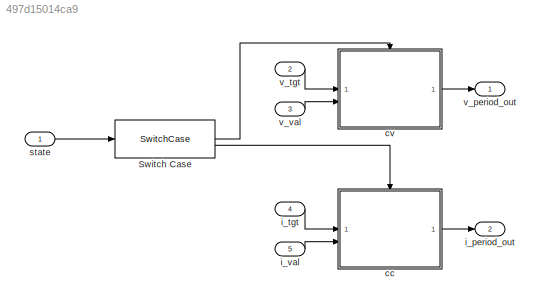
MODEL slx_497d15014ca9
KIND model
CONFIG AbsTol = auto
CONFIG EnableMultiTasking = off
CONFIG FixedStep = 0.001
CONFIG MaxStep = auto
CONFIG MinStep = auto
CONFIG RelTol = 1e-3
CONFIG SampleTimeConstraint = Unconstrained
CONFIG SolverName = FixedStepDiscrete
CONFIG StartTime = 0.0
CONFIG StopTime = inf
BLOCK [SwitchCase] Switch Case
  CaseConditions = {1,2}
  ShowDefaultCase = off
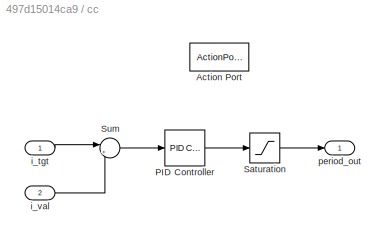
BLOCK [SubSystem] cc
  TreatAsAtomicUnit = on
BLOCK [ActionPort] cc/Action Port
  ActionPortLabel = case [ 2 ]:
BLOCK [Reference] cc/PID Controller  REF=slpidlib/PID Controller
  LibrarySourceBlock = simulink/Continuous/PID Controller
  SourceBlock = slpidlib/PID Controller
  SourceType = PID 1dof
BLOCK [Saturate] cc/Saturation
  LowerLimit = period_max*0.01
  UpperLimit = period_max*(12000/(12000+v_in)+0.1)
BLOCK [Sum] cc/Sum
  Inputs = |+-
BLOCK [Inport] cc/i_tgt
BLOCK [Inport] cc/i_val
  Port = 2
BLOCK [Outport] cc/period_out
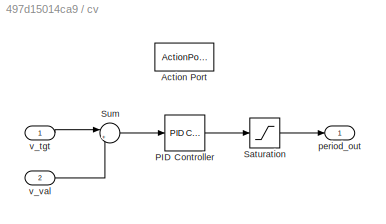
BLOCK [SubSystem] cv
  TreatAsAtomicUnit = on
BLOCK [ActionPort] cv/Action Port
  ActionPortLabel = case [ 1 ]:
BLOCK [Reference] cv/PID Controller  REF=slpidlib/PID Controller
  LibrarySourceBlock = simulink/Continuous/PID Controller
  SourceBlock = slpidlib/PID Controller
  SourceType = PID 1dof
BLOCK [Saturate] cv/Saturation
  LowerLimit = period_max*0.01
  UpperLimit = period_max*(12000/(12000+v_in)+0.1)
BLOCK [Sum] cv/Sum
  AccumDataTypeStr = single
  Inputs = |+-
  OutDataTypeStr = single
BLOCK [Outport] cv/period_out
  OutDataTypeStr = single
BLOCK [Inport] cv/v_tgt
BLOCK [Inport] cv/v_val
  Port = 2
BLOCK [Outport] i_period_out
  Port = 2
BLOCK [Inport] i_tgt
  Port = 4
BLOCK [Inport] i_val
  Port = 5
BLOCK [Inport] state
BLOCK [Outport] v_period_out
BLOCK [Inport] v_tgt
  Port = 2
BLOCK [Inport] v_val
  Port = 3
LINE Switch Case:1 -> cv:ifaction
LINE Switch Case:2 -> cc:ifaction
LINE cc/PID Controller:1 -> cc/Saturation:1
LINE cc/Saturation:1 -> cc/period_out:1
LINE cc/Sum:1 -> cc/PID Controller:1
LINE cc/i_tgt:1 -> cc/Sum:1
LINE cc/i_val:1 -> cc/Sum:2
LINE cc:1 -> i_period_out:1
LINE cv/PID Controller:1 -> cv/Saturation:1
LINE cv/Saturation:1 -> cv/period_out:1
LINE cv/Sum:1 -> cv/PID Controller:1
LINE cv/v_tgt:1 -> cv/Sum:1
LINE cv/v_val:1 -> cv/Sum:2
LINE cv:1 -> v_period_out:1
LINE i_tgt:1 -> cc:1
LINE i_val:1 -> cc:2
LINE state:1 -> Switch Case:1
LINE v_tgt:1 -> cv:1
LINE v_val:1 -> cv:2
